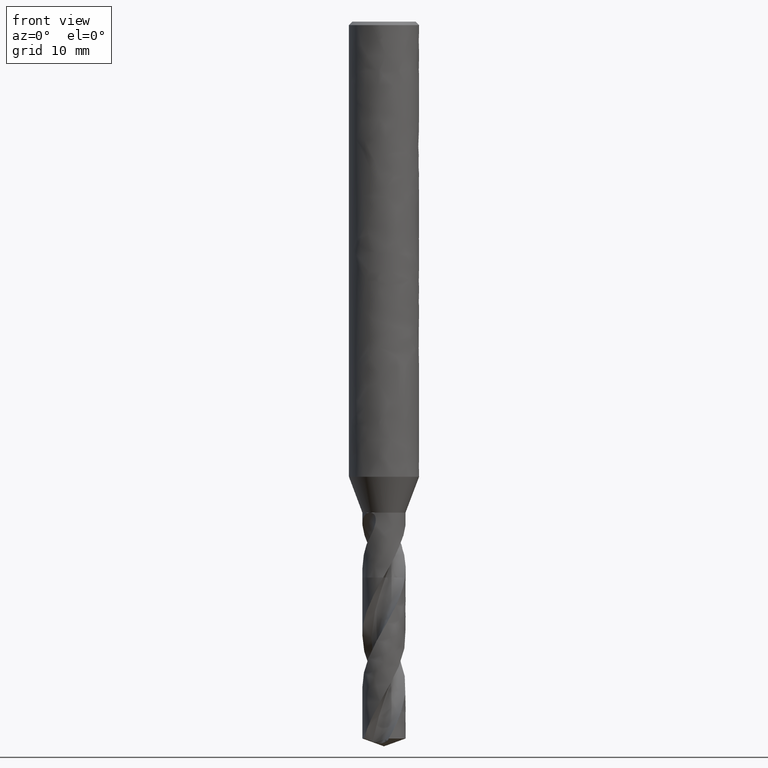
[diagram: clean part render]
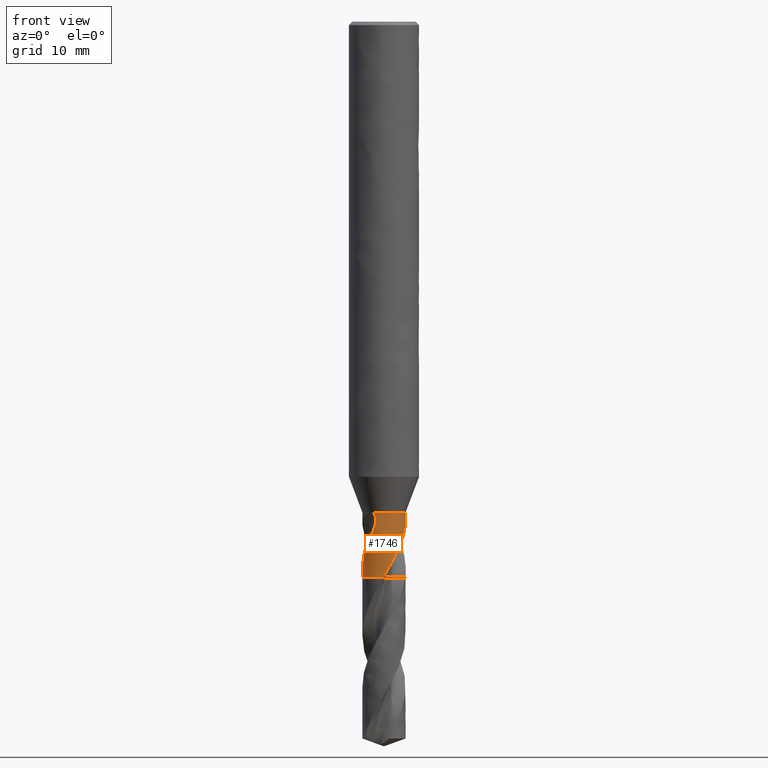
[diagram: same view with one face highlighted and labeled with its STEP entity id]
A machine part, front view. The second image highlights one B-rep face of the part: STEP entity #1746.
In plain terms, the highlighted face is a freeform B-spline surface patch.
Its self-contained STEP definition (entity closure, byte-faithful):
#75 = VERTEX_POINT('', #76);
#76 = CARTESIAN_POINT('', (-1.10024020626456, -1.48726981026272, -42.));
#86 = EDGE_CURVE('', #87, #75, #89, .T.);
#87 = VERTEX_POINT('', #88);
#88 = CARTESIAN_POINT('', (1.29785377991718, 1.31836093917967, -42.));
#89 = CIRCLE('', #90, 1.85);
#90 = AXIS2_PLACEMENT_3D('', #91, #92, #93);
#91 = CARTESIAN_POINT('', (1.57474777179495E-31, 2.57175827820944E-15, -42.));
#92 = DIRECTION('', (3.74939945665464E-33, 6.12323399573677E-17, -1.));
#93 = DIRECTION('', (-1., 6.12323399573677E-17, 0.));
#508 = VERTEX_POINT('', #509);
#509 = CARTESIAN_POINT('', (-0.0624869089179854, -1.84894439781565, -47.55));
#518 = VERTEX_POINT('', #519);
#519 = CARTESIAN_POINT('', (1.84306729502877, -0.16000920597057, -43.0867052285401));
#539 = EDGE_CURVE('', #518, #508, #540, .T.);
#540 = B_SPLINE_CURVE_WITH_KNOTS('', 3, (#541, #542, #543, #544, #545, #546, #547, #548, #549, #550, #551, #552, #553, #554, #555, #556, #557, #558, #559, #560, #561, #562, #563, #564, #565, #566, #567, #568, #569, #570, #571, #572, #573, #574, #575, #576, #577, #578, #579, #580, #581, #582, #583, #584, #585, #586, #587, #588, #589, #590, #591, #592, #593, #594, #595, #596, #597, #598, #599, #600, #601, #602, #603, #604, #605, #606, #607, #608, #609, #610, #611, #612, #613, #614, #615, #616, #617, #618, #619, #620, #621, #622, #623, #624, #625, #626, #627, #628, #629, #630, #631, #632, #633, #634), .UNSPECIFIED., .F., .U., (4, 3, 3, 3, 3, 3, 3, 3, 3, 3, 3, 3, 3, 3, 3, 3, 3, 3, 3, 3, 3, 3, 3, 3, 3, 3, 3, 3, 3, 3, 3, 4), (0., 0.196716425756111, 0.393437133958275, 0.59017746014317, 0.786949945770253, 0.983762286250152, 1.18062367194909, 1.37754068411883, 1.57452691595146, 1.7715672682591, 1.96863333770452, 2.10000741513502, 2.29719094586902, 2.38479003934848, 2.47238311044585, 2.60373979518899, 2.73507246103042, 2.79345636772641, 2.9904871215106, 3.18744214066474, 3.38437231018557, 3.58129833184764, 3.87651929793645, 4.00781151643261, 4.2046934113103, 4.33598364964063, 4.46726265002099, 4.76235120048029, 5.05739169356764, 5.14491864603674, 5.18384170503142, 5.282823434122), .UNSPECIFIED.);
#541 = CARTESIAN_POINT('', (1.84306729502877, -0.16000920597057, -43.0867052285401));
#542 = CARTESIAN_POINT('', (1.8394089816215, -0.202147517669621, -43.1368119668692));
#543 = CARTESIAN_POINT('', (1.83433192427245, -0.243844442050025, -43.1872078451688));
#544 = CARTESIAN_POINT('', (1.82791775511327, -0.284985404086187, -43.2378634023422));
#545 = CARTESIAN_POINT('', (1.82150344631992, -0.326127261746341, -43.2885200622689));
#546 = CARTESIAN_POINT('', (1.81374890392893, -0.366732595037003, -43.3394629215907));
#547 = CARTESIAN_POINT('', (1.80474407914064, -0.406692523667633, -43.3906684900215));
#548 = CARTESIAN_POINT('', (1.79573835634573, -0.446656437304199, -43.4418791649302));
#549 = CARTESIAN_POINT('', (1.78547746268948, -0.485996564263179, -43.493374642911));
#550 = CARTESIAN_POINT('', (1.7740550419084, -0.524622443553114, -43.5451271347679));
#551 = CARTESIAN_POINT('', (1.76263075400283, -0.563254636681987, -43.5968880861577));
#552 = CARTESIAN_POINT('', (1.75003931164126, -0.601189657327781, -43.6489293038802));
#553 = CARTESIAN_POINT('', (1.73638221861051, -0.638339087706113, -43.7012318891068));
#554 = CARTESIAN_POINT('', (1.72272235943371, -0.675496042434586, -43.7535450678461));
#555 = CARTESIAN_POINT('', (1.70799045171578, -0.711884146026338, -43.8061406899594));
#556 = CARTESIAN_POINT('', (1.69228860561475, -0.747435131169756, -43.8589940644174));
#557 = CARTESIAN_POINT('', (1.67658284664688, -0.78299497554349, -43.9118606098245));
#558 = CARTESIAN_POINT('', (1.65990016344424, -0.817731680688119, -43.9650057986794));
#559 = CARTESIAN_POINT('', (1.64234989441402, -0.851579018247069, -44.0184135772988));
#560 = CARTESIAN_POINT('', (1.6247946662623, -0.88543591993627, -44.0718364471776));
#561 = CARTESIAN_POINT('', (1.60636560613688, -0.918414893005733, -44.1255425994533));
#562 = CARTESIAN_POINT('', (1.58716699698794, -0.950474052077632, -44.1795065001637));
#563 = CARTESIAN_POINT('', (1.56796163920292, -0.982544480486593, -44.2334893700987));
#564 = CARTESIAN_POINT('', (1.54797906546389, -1.01370603095089, -44.2877487467111));
#565 = CARTESIAN_POINT('', (1.52732994534929, -1.04391725631884, -44.3422685054474));
#566 = CARTESIAN_POINT('', (1.50667515204536, -1.07413678199211, -44.3968032430744));
#567 = CARTESIAN_POINT('', (1.48534803003034, -1.10341346603316, -44.4516179767842));
#568 = CARTESIAN_POINT('', (1.46346141123672, -1.13171582025809, -44.5066981954612));
#569 = CARTESIAN_POINT('', (1.44157193586482, -1.16002186842457, -44.5617856030492));
#570 = CARTESIAN_POINT('', (1.41911608457152, -1.18736225758671, -44.6171554295696));
#571 = CARTESIAN_POINT('', (1.39620458087777, -1.21371857048326, -44.6727918541367));
#572 = CARTESIAN_POINT('', (1.38093062900578, -1.23128900409975, -44.7098818715589));
#573 = CARTESIAN_POINT('', (1.36545248290692, -1.2484244480044, -44.7470969854065));
#574 = CARTESIAN_POINT('', (1.34979710174421, -1.26512757622424, -44.7844279066911));
#575 = CARTESIAN_POINT('', (1.32629944228941, -1.29019783255721, -44.8404590736338));
#576 = CARTESIAN_POINT('', (1.30239311868944, -1.31430295233905, -44.8967606330958));
#577 = CARTESIAN_POINT('', (1.27819821668728, -1.33742637885509, -44.9533297349508));
#578 = CARTESIAN_POINT('', (1.2674495934411, -1.34769899743233, -44.9784606473703));
#579 = CARTESIAN_POINT('', (1.25664380815718, -1.35777821187862, -45.0036470461029));
#580 = CARTESIAN_POINT('', (1.24579550256817, -1.36765988673388, -45.0288916320781));
#581 = CARTESIAN_POINT('', (1.23494794279327, -1.37754088223026, -45.0541344825041));
#582 = CARTESIAN_POINT('', (1.22405901929778, -1.38722342849867, -45.079438080554));
#583 = CARTESIAN_POINT('', (1.21313597855747, -1.39671081385139, -45.1047991101634));
#584 = CARTESIAN_POINT('', (1.19675552287774, -1.41093832604159, -45.142831122621));
#585 = CARTESIAN_POINT('', (1.18029965092425, -1.42472673700079, -45.1809971554676));
#586 = CARTESIAN_POINT('', (1.16374451597932, -1.43812332625826, -45.2192546293281));
#587 = CARTESIAN_POINT('', (1.14719240818264, -1.45151746591553, -45.2575051077129));
#588 = CARTESIAN_POINT('', (1.13053991931252, -1.46452186999191, -45.2958502385999));
#589 = CARTESIAN_POINT('', (1.11369908485439, -1.47721844978814, -45.3342124270485));
#590 = CARTESIAN_POINT('', (1.10621249573061, -1.48286271144561, -45.3512663291884));
#591 = CARTESIAN_POINT('', (1.09868756825841, -1.48844671096235, -45.368323495497));
#592 = CARTESIAN_POINT('', (1.09111270762558, -1.49397893534614, -45.3853751307361));
#593 = CARTESIAN_POINT('', (1.06554949021243, -1.51264877781002, -45.44292003882));
#594 = CARTESIAN_POINT('', (1.03942606233949, -1.53072069983775, -45.500415970826));
#595 = CARTESIAN_POINT('', (1.01279953459577, -1.54813988473994, -45.5578708014862));
#596 = CARTESIAN_POINT('', (0.986183241549886, -1.56555237406035, -45.6153035476734));
#597 = CARTESIAN_POINT('', (0.959060315084665, -1.58231618639473, -45.6727042137548));
#598 = CARTESIAN_POINT('', (0.931450019125534, -1.59840572504951, -45.7300534986446));
#599 = CARTESIAN_POINT('', (0.903843206732006, -1.61449323370201, -45.7873955478279));
#600 = CARTESIAN_POINT('', (0.875741680918837, -1.62991064719169, -45.8446936133014));
#601 = CARTESIAN_POINT('', (0.847180338500194, -1.64462320124054, -45.9019373474767));
#602 = CARTESIAN_POINT('', (0.818619597657303, -1.65933544540495, -45.9591798759508));
#603 = CARTESIAN_POINT('', (0.789594436399041, -1.67334506704525, -46.0163775908209));
#604 = CARTESIAN_POINT('', (0.760149899400829, -1.68661558466679, -46.0735246442443));
#605 = CARTESIAN_POINT('', (0.716008223327328, -1.70651003538319, -46.1591964522582));
#606 = CARTESIAN_POINT('', (0.670911021226305, -1.72474784854423, -46.244782461559));
#607 = CARTESIAN_POINT('', (0.625025846268933, -1.74121873740661, -46.3302645998306));
#608 = CARTESIAN_POINT('', (0.604619550279691, -1.74854375760418, -46.3682806653024));
#609 = CARTESIAN_POINT('', (0.584055035286924, -1.75552054066731, -46.4062808468294));
#610 = CARTESIAN_POINT('', (0.563346944238397, -1.76214080607006, -46.4442629626469));
#611 = CARTESIAN_POINT('', (0.532293708550612, -1.77206835860909, -46.5012198106556));
#612 = CARTESIAN_POINT('', (0.500909312496765, -1.78119609540537, -46.5581421256214));
#613 = CARTESIAN_POINT('', (0.469273212738797, -1.78949228883664, -46.6150391611139));
#614 = CARTESIAN_POINT('', (0.448176752449008, -1.79502458632647, -46.6529808182416));
#615 = CARTESIAN_POINT('', (0.426967308034693, -1.8001874748472, -46.6909154781211));
#616 = CARTESIAN_POINT('', (0.405680311941993, -1.80497187914456, -46.7288523937935));
#617 = CARTESIAN_POINT('', (0.384395137935993, -1.80975587391493, -46.7667860622089));
#618 = CARTESIAN_POINT('', (0.363034204533173, -1.81416132216792, -46.804726918238));
#619 = CARTESIAN_POINT('', (0.341611422508367, -1.81818635898848, -46.8426712449126));
#620 = CARTESIAN_POINT('', (0.29345735615968, -1.82723382490066, -46.9279623906717));
#621 = CARTESIAN_POINT('', (0.244978150929426, -1.83436186632938, -47.0132957013568));
#622 = CARTESIAN_POINT('', (0.196287717151161, -1.83955731960045, -47.0986039612971));
#623 = CARTESIAN_POINT('', (0.14760521297329, -1.84475192675319, -47.1838983281507));
#624 = CARTESIAN_POINT('', (0.0986926689142373, -1.84801458656961, -47.2692011964943));
#625 = CARTESIAN_POINT('', (0.0497394103237672, -1.84933122805534, -47.3544886170324));
#626 = CARTESIAN_POINT('', (0.0352168968442807, -1.84972182398858, -47.3797900525253));
#627 = CARTESIAN_POINT('', (0.0206897971943664, -1.84994133859987, -47.4050920752432));
#628 = CARTESIAN_POINT('', (0.00616321375096961, -1.84998973370023, -47.4303941429912));
#629 = CARTESIAN_POINT('', (-0.000296728568604671, -1.85001125490362, -47.441645921419));
#630 = CARTESIAN_POINT('', (-0.00675665059765378, -1.84999893921517, -47.4528978270825));
#631 = CARTESIAN_POINT('', (-0.0132161625767267, -1.84995279211301, -47.4641497785203));
#632 = CARTESIAN_POINT('', (-0.0296427662734539, -1.84983543956977, -47.4927636037881));
#633 = CARTESIAN_POINT('', (-0.0460709922501162, -1.84949918999374, -47.5213851793178));
#634 = CARTESIAN_POINT('', (-0.0624869089179854, -1.84894439781565, -47.55));
#881 = EDGE_CURVE('', #518, #87, #882, .T.);
#882 = B_SPLINE_CURVE_WITH_KNOTS('', 3, (#883, #884, #885, #886, #887, #888, #889, #890, #891, #892, #893, #894, #895, #896, #897, #898, #899, #900, #901, #902, #903, #904, #905, #906, #907, #908, #909, #910, #911, #912, #913, #914, #915, #916, #917, #918, #919, #920, #921, #922, #923, #924, #925), .UNSPECIFIED., .F., .U., (4, 3, 3, 3, 3, 3, 3, 3, 3, 3, 3, 3, 3, 3, 4), (0., 0.198822606907566, 0.237813090860458, 0.276851461468435, 0.477158387704633, 0.677648811455937, 0.878275060535816, 1.07899684459672, 1.27976999007786, 1.4127545313711, 1.54570524612523, 1.67859063721191, 1.81136380158849, 1.89946093325806, 1.99367396907799), .UNSPECIFIED.);
#883 = CARTESIAN_POINT('', (1.84306729502877, -0.16000920597057, -43.0867052285401));
#884 = CARTESIAN_POINT('', (1.84676477685177, -0.11741973256749, -43.0360620130592));
#885 = CARTESIAN_POINT('', (1.84908909034062, -0.0734947396122872, -42.9863911045682));
#886 = CARTESIAN_POINT('', (1.8497816446024, -0.0284230063867278, -42.9378078860306));
#887 = CARTESIAN_POINT('', (1.84991745926779, -0.0195841287641381, -42.9282803819292));
#888 = CARTESIAN_POINT('', (1.84999059587092, -0.0107001759196398, -42.9187933938194));
#889 = CARTESIAN_POINT('', (1.84999915061381, -0.00177277414997356, -42.9093478148476));
#890 = CARTESIAN_POINT('', (1.85000771586332, 0.00716559192087611, -42.8998906351687));
#891 = CARTESIAN_POINT('', (1.84995154084945, 0.0161479258675499, -42.8904745302085));
#892 = CARTESIAN_POINT('', (1.8498287332905, 0.0251725543567623, -42.8811004325029));
#893 = CARTESIAN_POINT('', (1.84919860441302, 0.0714781650916627, -42.8330016858494));
#894 = CARTESIAN_POINT('', (1.84681152314698, 0.118935973603663, -42.7859700880014));
#895 = CARTESIAN_POINT('', (1.84241960979114, 0.167302066505653, -42.7401494787513));
#896 = CARTESIAN_POINT('', (1.83802367308372, 0.215712466701604, -42.6942868940783));
#897 = CARTESIAN_POINT('', (1.83161242122115, 0.265103298801918, -42.6495733535844));
#898 = CARTESIAN_POINT('', (1.82295210336695, 0.315191416174411, -42.6061861760742));
#899 = CARTESIAN_POINT('', (1.81428591844689, 0.365313466514237, -42.5627696052518));
#900 = CARTESIAN_POINT('', (1.80335330265948, 0.416213837861926, -42.5206062538252));
#901 = CARTESIAN_POINT('', (1.78993885779428, 0.467566984888932, -42.4799217571133));
#902 = CARTESIAN_POINT('', (1.77651802518698, 0.518944585455537, -42.4392178871008));
#903 = CARTESIAN_POINT('', (1.76058658273116, 0.570874983213705, -42.3999142955713));
#904 = CARTESIAN_POINT('', (1.7419481894896, 0.622989971936866, -42.3623214788425));
#905 = CARTESIAN_POINT('', (1.72330502698818, 0.675118296032913, -42.3247190427271));
#906 = CARTESIAN_POINT('', (1.70190903998081, 0.727553250041842, -42.2887381830671));
#907 = CARTESIAN_POINT('', (1.67758993459279, 0.779866662547497, -42.2548153166187));
#908 = CARTESIAN_POINT('', (1.66148187857295, 0.814517089271035, -42.2323460923449));
#909 = CARTESIAN_POINT('', (1.64406775195739, 0.849166429459568, -42.2107469870411));
#910 = CARTESIAN_POINT('', (1.62530845606401, 0.883669860664505, -42.1901900020238));
#911 = CARTESIAN_POINT('', (1.60655393186853, 0.918164515423296, -42.1696382459726));
#912 = CARTESIAN_POINT('', (1.58642623752813, 0.952565279280328, -42.150096372932));
#913 = CARTESIAN_POINT('', (1.56490081726154, 0.986704328628476, -42.1317887337214));
#914 = CARTESIAN_POINT('', (1.54338597324043, 1.02082660418258, -42.1134900897398));
#915 = CARTESIAN_POINT('', (1.52043432833809, 1.0547502280468, -42.0963896679464));
#916 = CARTESIAN_POINT('', (1.49604763451553, 1.08827454038974, -42.0807861997375));
#917 = CARTESIAN_POINT('', (1.47168153617299, 1.12177054019018, -42.0651959092444));
#918 = CARTESIAN_POINT('', (1.44582423421392, 1.15494607456439, -42.0510621361919));
#919 = CARTESIAN_POINT('', (1.41852830087003, 1.18755103453738, -42.038790440434));
#920 = CARTESIAN_POINT('', (1.40041700974331, 1.20918495028615, -42.0306479727744));
#921 = CARTESIAN_POINT('', (1.3816443322107, 1.23060175934945, -42.0233139004419));
#922 = CARTESIAN_POINT('', (1.36224878133229, 1.25171013328114, -42.0169425495199));
#923 = CARTESIAN_POINT('', (1.34150674700013, 1.27428389875612, -42.0101288848605));
#924 = CARTESIAN_POINT('', (1.32001231931342, 1.29654707678571, -42.0044031172285));
#925 = CARTESIAN_POINT('', (1.29785377991718, 1.31836093917968, -42.));
#1143 = EDGE_CURVE('', #1144, #1146, #1148, .T.);
#1144 = VERTEX_POINT('', #1145);
#1145 = CARTESIAN_POINT('', (-1.49718759874657, -1.08670570724528, -44.7500251806955));
#1146 = VERTEX_POINT('', #1147);
#1147 = CARTESIAN_POINT('', (-1.73069871023089, -0.65359159603313, -45.6142021687221));
#1148 = B_SPLINE_CURVE_WITH_KNOTS('', 3, (#1149, #1150, #1151, #1152, #1153, #1154, #1155, #1156, #1157, #1158, #1159, #1160, #1161, #1162, #1163, #1164, #1165, #1166, #1167, #1168, #1169, #1170, #1171, #1172, #1173), .UNSPECIFIED., .F., .U., (4, 3, 3, 3, 3, 3, 3, 3, 4), (0., 0.197059343819578, 0.328452626677997, 0.416033315045696, 0.54736459219892, 0.678671321736234, 0.737050102141031, 0.934021778654905, 0.99555840081466), .UNSPECIFIED.);
#1149 = CARTESIAN_POINT('', (-1.49718759874657, -1.08670570724528, -44.7500251806955));
#1150 = CARTESIAN_POINT('', (-1.51832803527759, -1.05757988302691, -44.8049749554888));
#1151 = CARTESIAN_POINT('', (-1.53819775188796, -1.02841371260222, -44.8604089169814));
#1152 = CARTESIAN_POINT('', (-1.55681081058634, -0.99941988175216, -44.91633405678));
#1153 = CARTESIAN_POINT('', (-1.56922144201854, -0.980087661598625, -44.9536232691056));
#1154 = CARTESIAN_POINT('', (-1.58107599746843, -0.960828382463214, -44.9911406274283));
#1155 = CARTESIAN_POINT('', (-1.59237270795861, -0.941726690154463, -45.0288997792663));
#1156 = CARTESIAN_POINT('', (-1.59990257295244, -0.928994385085329, -45.0540682843695));
#1157 = CARTESIAN_POINT('', (-1.607182831556, -0.916335883547863, -45.0793501704879));
#1158 = CARTESIAN_POINT('', (-1.61423004891212, -0.903748498858624, -45.1047304498904));
#1159 = CARTESIAN_POINT('', (-1.62479767601125, -0.884873135601415, -45.1427893481539));
#1160 = CARTESIAN_POINT('', (-1.63484261468264, -0.86615777946995, -45.1810755169713));
#1161 = CARTESIAN_POINT('', (-1.6444486249812, -0.847519156006298, -45.219504153418));
#1162 = CARTESIAN_POINT('', (-1.65405283978477, -0.828884016356858, -45.2579256070259));
#1163 = CARTESIAN_POINT('', (-1.66322041811302, -0.810323312682977, -45.296493666637));
#1164 = CARTESIAN_POINT('', (-1.67205308195712, -0.791668169827288, -45.3350901323241));
#1165 = CARTESIAN_POINT('', (-1.67598007141731, -0.783374120527378, -45.3522500646649));
#1166 = CARTESIAN_POINT('', (-1.67984117626185, -0.775059917090704, -45.369415468581));
#1167 = CARTESIAN_POINT('', (-1.68364524945491, -0.766706380557722, -45.3865742340519));
#1168 = CARTESIAN_POINT('', (-1.69648030132172, -0.738521309127451, -45.4444684000189));
#1169 = CARTESIAN_POINT('', (-1.70865598646685, -0.709907120557712, -45.502305359234));
#1170 = CARTESIAN_POINT('', (-1.72013899947602, -0.680897806195348, -45.5600762113432));
#1171 = CARTESIAN_POINT('', (-1.72372644841948, -0.671834903098695, -45.5781246087626));
#1172 = CARTESIAN_POINT('', (-1.7272465665319, -0.662732810032251, -45.5961668821323));
#1173 = CARTESIAN_POINT('', (-1.73069871023089, -0.65359159603313, -45.6142021687221));
#1260 = VERTEX_POINT('', #1261);
#1261 = CARTESIAN_POINT('', (-1.85, 2.97885262663979E-15, -46.7983552435492));
#1277 = EDGE_CURVE('', #1146, #1260, #1278, .T.);
#1278 = B_SPLINE_CURVE_WITH_KNOTS('', 3, (#1279, #1280, #1281, #1282, #1283, #1284, #1285, #1286, #1287, #1288, #1289, #1290, #1291, #1292, #1293, #1294, #1295, #1296, #1297, #1298, #1299, #1300), .UNSPECIFIED., .F., .U., (4, 3, 3, 3, 3, 3, 3, 4), (0., 0.131307389809115, 0.426486088284236, 0.62334934500505, 0.918404643924937, 1.11521526862668, 1.31201969954361, 1.3595742574502), .UNSPECIFIED.);
#1279 = CARTESIAN_POINT('', (-1.73069871023089, -0.653591596033128, -45.6142021687221));
#1280 = CARTESIAN_POINT('', (-1.73806492505469, -0.634085992576458, -45.6526860231074));
#1281 = CARTESIAN_POINT('', (-1.74512635359128, -0.614389979598252, -45.6911334783599));
#1282 = CARTESIAN_POINT('', (-1.75187504928931, -0.594502995516075, -45.7295352974037));
#1283 = CARTESIAN_POINT('', (-1.76704610108957, -0.549797102827887, -45.8158624948366));
#1284 = CARTESIAN_POINT('', (-1.7806365469637, -0.50411535374325, -45.9019830047171));
#1285 = CARTESIAN_POINT('', (-1.79249756168144, -0.457659798721795, -45.9879036681683));
#1286 = CARTESIAN_POINT('', (-1.80040801727127, -0.426677238321802, -46.0452066568799));
#1287 = CARTESIAN_POINT('', (-1.80755135119565, -0.395345544806982, -46.1024331583638));
#1288 = CARTESIAN_POINT('', (-1.81389175255734, -0.363726146990753, -46.1595833102811));
#1289 = CARTESIAN_POINT('', (-1.82339463821618, -0.31633553164822, -46.2452389853834));
#1290 = CARTESIAN_POINT('', (-1.83109595479214, -0.268283496512208, -46.3307509469144));
#1291 = CARTESIAN_POINT('', (-1.83690131476583, -0.219757957333903, -46.4161010481368));
#1292 = CARTESIAN_POINT('', (-1.84077366183847, -0.187389985246528, -46.4730320939489));
#1293 = CARTESIAN_POINT('', (-1.84380336814338, -0.154801288254314, -46.5299016552521));
#1294 = CARTESIAN_POINT('', (-1.84596655088532, -0.122096244875243, -46.5867305690563));
#1295 = CARTESIAN_POINT('', (-1.8481296655502, -0.0893922307495518, -46.64355769441));
#1296 = CARTESIAN_POINT('', (-1.84942584740443, -0.0565670753900655, -46.7003547725027));
#1297 = CARTESIAN_POINT('', (-1.84984728227812, -0.0237704069852769, -46.757168104698));
#1298 = CARTESIAN_POINT('', (-1.84994911509261, -0.0158456308024844, -46.7708961131741));
#1299 = CARTESIAN_POINT('', (-1.85, -0.00792197701582683, -46.7846252419342));
#1300 = CARTESIAN_POINT('', (-1.85, 3.06778685093676E-15, -46.7983552435492));
#1303 = EDGE_CURVE('', #1144, #75, #1304, .T.);
#1304 = B_SPLINE_CURVE_WITH_KNOTS('', 3, (#1305, #1306, #1307, #1308, #1309, #1310, #1311, #1312, #1313, #1314, #1315, #1316, #1317, #1318, #1319, #1320, #1321, #1322, #1323, #1324, #1325, #1326, #1327, #1328, #1329, #1330, #1331, #1332, #1333, #1334, #1335, #1336, #1337, #1338, #1339, #1340, #1341, #1342, #1343, #1344, #1345, #1346, #1347, #1348, #1349, #1350, #1351, #1352, #1353, #1354, #1355, #1356, #1357, #1358, #1359, #1360, #1361, #1362, #1363, #1364, #1365, #1366, #1367, #1368, #1369, #1370, #1371, #1372, #1373, #1374, #1375, #1376, #1377, #1378, #1379, #1380, #1381, #1382, #1383, #1384, #1385, #1386, #1387, #1388, #1389, #1390, #1391, #1392, #1393, #1394, #1395, #1396, #1397, #1398), .UNSPECIFIED., .F., .U., (4, 3, 3, 3, 3, 3, 3, 3, 3, 3, 3, 3, 3, 3, 3, 3, 3, 3, 3, 3, 3, 3, 3, 3, 3, 3, 3, 3, 3, 3, 3, 4), (0., 0.0875844961724776, 0.284661913231413, 0.481547126377977, 0.612735009487164, 0.743855380556728, 0.874908558684904, 1.0058933912258, 1.13680877502435, 1.26766122932118, 1.39845748589745, 1.52920695332873, 1.65992658625603, 1.79063505644454, 1.92135879208781, 2.05213829723771, 2.18302753288296, 2.31410901812366, 2.44550792458881, 2.53327209903489, 2.55924725997595, 2.64733557715993, 2.73573734269401, 2.7946061471892, 2.85357373075538, 2.91262347631889, 2.97172180260201, 3.03082163859827, 3.08987290581467, 3.14883507119858, 3.20768475162252, 3.24392678534289), .UNSPECIFIED.);
#1305 = CARTESIAN_POINT('', (-1.49718759874657, -1.08670570724529, -44.7500251806954));
#1306 = CARTESIAN_POINT('', (-1.48779157394233, -1.09965089720852, -44.7256023431543));
#1307 = CARTESIAN_POINT('', (-1.47816485835865, -1.11256039252553, -44.7012482111164));
#1308 = CARTESIAN_POINT('', (-1.46831867052837, -1.12540671838143, -44.6769508302682));
#1309 = CARTESIAN_POINT('', (-1.4461633650774, -1.15431275573982, -44.6222783109513));
#1310 = CARTESIAN_POINT('', (-1.42288689290747, -1.18290452644296, -44.5678825944904));
#1311 = CARTESIAN_POINT('', (-1.39865822269709, -1.21089024113741, -44.5136122320748));
#1312 = CARTESIAN_POINT('', (-1.37445318200893, -1.23884866217267, -44.4593947979761));
#1313 = CARTESIAN_POINT('', (-1.34929051625967, -1.26621001062962, -44.4052857726782));
#1314 = CARTESIAN_POINT('', (-1.32340143868604, -1.29271366979843, -44.3511156778398));
#1315 = CARTESIAN_POINT('', (-1.30615111689572, -1.31037349749922, -44.3150212451696));
#1316 = CARTESIAN_POINT('', (-1.28857761350958, -1.32765528226835, -44.2788927266559));
#1317 = CARTESIAN_POINT('', (-1.27076380428974, -1.34449222895028, -44.2426789638912));
#1318 = CARTESIAN_POINT('', (-1.25295916243021, -1.36132051098587, -44.2064838374892));
#1319 = CARTESIAN_POINT('', (-1.23491201298027, -1.37770683340821, -44.1701986069677));
#1320 = CARTESIAN_POINT('', (-1.21671093035233, -1.39359768655138, -44.1337776665513));
#1321 = CARTESIAN_POINT('', (-1.19851917491184, -1.40948039638963, -44.097375390131));
#1322 = CARTESIAN_POINT('', (-1.18017086116392, -1.42487064748244, -44.0608321147434));
#1323 = CARTESIAN_POINT('', (-1.16176075757828, -1.43972634279962, -44.0241074286454));
#1324 = CARTESIAN_POINT('', (-1.14336025505199, -1.45457429071811, -43.9874018948509));
#1325 = CARTESIAN_POINT('', (-1.12489481783544, -1.46889076924375, -43.9505088761629));
#1326 = CARTESIAN_POINT('', (-1.10647170437172, -1.4826396620301, -43.9133888936844));
#1327 = CARTESIAN_POINT('', (-1.08805835892492, -1.49638126509217, -43.8762885923861));
#1328 = CARTESIAN_POINT('', (-1.06968356932216, -1.50955872483177, -43.8389543017987));
#1329 = CARTESIAN_POINT('', (-1.05146156194961, -1.52214604547082, -43.8013533296288));
#1330 = CARTESIAN_POINT('', (-1.03324831368397, -1.5347273155313, -43.7637704318087));
#1331 = CARTESIAN_POINT('', (-1.01518328615826, -1.54672209282422, -43.7259123850508));
#1332 = CARTESIAN_POINT('', (-0.997389908957162, -1.55811211711815, -43.6877528770398));
#1333 = CARTESIAN_POINT('', (-0.979604173548071, -1.56949724969335, -43.6496097575435));
#1334 = CARTESIAN_POINT('', (-0.962084902723828, -1.5802813087247, -43.6111545303886));
#1335 = CARTESIAN_POINT('', (-0.944968933364692, -1.59045078986293, -43.5723669493995));
#1336 = CARTESIAN_POINT('', (-0.927859086822776, -1.60061663311932, -43.5335932437139));
#1337 = CARTESIAN_POINT('', (-0.911146116690425, -1.61017204798469, -43.494474067188));
#1338 = CARTESIAN_POINT('', (-0.894978222354074, -1.6191090085328, -43.4549997540301));
#1339 = CARTESIAN_POINT('', (-0.878814017219042, -1.62804392983907, -43.4155344481483));
#1340 = CARTESIAN_POINT('', (-0.863187302587616, -1.63636478013494, -43.3756972129213));
#1341 = CARTESIAN_POINT('', (-0.848263421283126, -1.64406483087287, -43.3354901028513));
#1342 = CARTESIAN_POINT('', (-0.833340814396146, -1.65176422406875, -43.2952864262477));
#1343 = CARTESIAN_POINT('', (-0.81911299646185, -1.65884706397929, -43.2546905364967));
#1344 = CARTESIAN_POINT('', (-0.80577104587552, -1.66530268168542, -43.213719597785));
#1345 = CARTESIAN_POINT('', (-0.792427537081502, -1.67175905334377, -43.1727438740734));
#1346 = CARTESIAN_POINT('', (-0.779959992835707, -1.67759311940267, -43.1313637551797));
#1347 = CARTESIAN_POINT('', (-0.768589279019067, -1.68278653434621, -43.0896207413434));
#1348 = CARTESIAN_POINT('', (-0.757213714215754, -1.68798216491026, -43.0478599190557));
#1349 = CARTESIAN_POINT('', (-0.746924261114724, -1.69254220847085, -43.0056958871334));
#1350 = CARTESIAN_POINT('', (-0.737987530525259, -1.69642989975691, -42.9632060644398));
#1351 = CARTESIAN_POINT('', (-0.729043301575304, -1.70032085300889, -42.9206805906762));
#1352 = CARTESIAN_POINT('', (-0.721441954086719, -1.70354420960874, -42.8777722371873));
#1353 = CARTESIAN_POINT('', (-0.715510741516624, -1.70603176370615, -42.834619167081));
#1354 = CARTESIAN_POINT('', (-0.709570817204791, -1.70852297151326, -42.7914027139148));
#1355 = CARTESIAN_POINT('', (-0.705293854595749, -1.71028250413681, -42.7478580886532));
#1356 = CARTESIAN_POINT('', (-0.703092263163661, -1.71118709365148, -42.7042291377787));
#1357 = CARTESIAN_POINT('', (-0.700885340453501, -1.71209387368077, -42.660494536934));
#1358 = CARTESIAN_POINT('', (-0.700759484239835, -1.71214581456973, -42.616548311638));
#1359 = CARTESIAN_POINT('', (-0.703231865171529, -1.71112972734605, -42.5728303179947));
#1360 = CARTESIAN_POINT('', (-0.704883221923451, -1.71045106069082, -42.5436301235352));
#1361 = CARTESIAN_POINT('', (-0.707699185231695, -1.70929286831245, -42.5144700722903));
#1362 = CARTESIAN_POINT('', (-0.711852348203525, -1.70756148772368, -42.4855634557016));
#1363 = CARTESIAN_POINT('', (-0.713081540835811, -1.7070490589368, -42.4770080967194));
#1364 = CARTESIAN_POINT('', (-0.714428364625016, -1.70648605319392, -42.4684715908734));
#1365 = CARTESIAN_POINT('', (-0.715897336852128, -1.70586957387956, -42.4599610245613));
#1366 = CARTESIAN_POINT('', (-0.720878991894414, -1.70377893715533, -42.4310995493075));
#1367 = CARTESIAN_POINT('', (-0.727279876826644, -1.70107015460611, -42.4024697527541));
#1368 = CARTESIAN_POINT('', (-0.735263250160359, -1.69761242719403, -42.3744254614623));
#1369 = CARTESIAN_POINT('', (-0.743275031065926, -1.69414239600562, -42.3462813789937));
#1370 = CARTESIAN_POINT('', (-0.752918792739971, -1.68990212980673, -42.3186135509811));
#1371 = CARTESIAN_POINT('', (-0.76429005046892, -1.68474351720201, -42.2919226847272));
#1372 = CARTESIAN_POINT('', (-0.771862437106965, -1.68130827634388, -42.2741486122546));
#1373 = CARTESIAN_POINT('', (-0.780221032673679, -1.6774555617643, -42.2567586548856));
#1374 = CARTESIAN_POINT('', (-0.789356020453653, -1.67314586123672, -42.2399349201328));
#1375 = CARTESIAN_POINT('', (-0.798506336311277, -1.66882892923539, -42.2230829559484));
#1376 = CARTESIAN_POINT('', (-0.80846351094185, -1.6640400691018, -42.2067510075066));
#1377 = CARTESIAN_POINT('', (-0.819170559137843, -1.65875242126177, -42.1911384235334));
#1378 = CARTESIAN_POINT('', (-0.829892525911333, -1.65345740592114, -42.1755040858948));
#1379 = CARTESIAN_POINT('', (-0.841403395523846, -1.64764346301541, -42.1605397823732));
#1380 = CARTESIAN_POINT('', (-0.853589145210751, -1.64130605652278, -42.1464410215815));
#1381 = CARTESIAN_POINT('', (-0.865784920215853, -1.63496343619282, -42.1323306616214));
#1382 = CARTESIAN_POINT('', (-0.878701843925283, -1.62807232248379, -42.1190362316951));
#1383 = CARTESIAN_POINT('', (-0.892171592425922, -1.62065722769134, -42.1067215955503));
#1384 = CARTESIAN_POINT('', (-0.905641685021864, -1.61324194347448, -42.0944066448185));
#1385 = CARTESIAN_POINT('', (-0.919715384675117, -1.60527404957326, -42.0830247967134));
#1386 = CARTESIAN_POINT('', (-0.934188424724529, -1.59680680957676, -42.0726843516235));
#1387 = CARTESIAN_POINT('', (-0.9486495706987, -1.58834652803468, -42.0623524044049));
#1388 = CARTESIAN_POINT('', (-0.963561968641241, -1.57935654785094, -42.0530210874437));
#1389 = CARTESIAN_POINT('', (-0.97871305764103, -1.56991106461574, -42.0447338931924));
#1390 = CARTESIAN_POINT('', (-0.993841285322888, -1.56047983357029, -42.0364592034009));
#1391 = CARTESIAN_POINT('', (-1.00925797045691, -1.55056292152771, -42.029195933338));
#1392 = CARTESIAN_POINT('', (-1.02476747411456, -1.54024401443306, -42.0229303658746));
#1393 = CARTESIAN_POINT('', (-1.04024738954581, -1.52994479321399, -42.0166767515357));
#1394 = CARTESIAN_POINT('', (-1.05586517880256, -1.51921510270484, -42.0113969247518));
#1395 = CARTESIAN_POINT('', (-1.07145688445503, -1.5081379727181, -42.0070374135543));
#1396 = CARTESIAN_POINT('', (-1.08105889279125, -1.50131622422919, -42.0043526487316));
#1397 = CARTESIAN_POINT('', (-1.09066390080344, -1.49435409061528, -42.0020124920595));
#1398 = CARTESIAN_POINT('', (-1.10024020626456, -1.48726981026272, -42.));
#1677 = VERTEX_POINT('', #1678);
#1678 = CARTESIAN_POINT('', (-1.85, 3.02487759389396E-15, -47.55));
#1685 = EDGE_CURVE('', #1260, #1677, #1686, .T.);
#1686 = LINE('', #1687, #1688);
#1687 = CARTESIAN_POINT('', (-1.85, 2.97885262663979E-15, -46.7983552435492));
#1688 = VECTOR('', #1689, 0.751644756450823);
#1689 = DIRECTION('', (0., 4.60249672541698E-17, -0.751644756450823));
#1746 = ADVANCED_FACE('', (#1747), #1763, .T.);
#1747 = FACE_OUTER_BOUND('', #1748, .T.);
#1748 = EDGE_LOOP('', (#1749, #1756, #1757, #1758, #1759, #1760, #1761, #1762));
#1749 = ORIENTED_EDGE('', *, *, #1750, .F.);
#1750 = EDGE_CURVE('', #508, #1677, #1751, .T.);
#1751 = CIRCLE('', #1752, 1.85);
#1752 = AXIS2_PLACEMENT_3D('', #1753, #1754, #1755);
#1753 = CARTESIAN_POINT('', (1.78283944163928E-31, 2.91159776497283E-15, -47.55));
#1754 = DIRECTION('', (3.74939945665464E-33, 6.12323399573677E-17, -1.));
#1755 = DIRECTION('', (-1., 6.12323399573677E-17, 0.));
#1756 = ORIENTED_EDGE('', *, *, #539, .F.);
#1757 = ORIENTED_EDGE('', *, *, #881, .T.);
#1758 = ORIENTED_EDGE('', *, *, #86, .T.);
#1759 = ORIENTED_EDGE('', *, *, #1303, .F.);
#1760 = ORIENTED_EDGE('', *, *, #1143, .T.);
#1761 = ORIENTED_EDGE('', *, *, #1277, .T.);
#1762 = ORIENTED_EDGE('', *, *, #1685, .T.);
#1763 = (
   BOUNDED_SURFACE ()
   B_SPLINE_SURFACE (2, 1, ((#1764, #1765), (#1766, #1767), (#1768, #1769), (#1770, #1771), (#1772, #1773), (#1774, #1775), (#1776, #1777), (#1778, #1779), (#1780, #1781)), .UNSPECIFIED., .T., .F., .U.)
   B_SPLINE_SURFACE_WITH_KNOTS ((3, 2, 2, 2, 3), (2, 2), (0., 2.90597320457056, 5.81194640914112, 8.71791961371168, 11.6238928182822), (0., 0.287168161322921), .UNSPECIFIED.)
   GEOMETRIC_REPRESENTATION_ITEM ()
   RATIONAL_B_SPLINE_SURFACE (((1., 1.), (0.707106781186548, 0.707106781186548), (1., 1.), (0.707106781186548, 0.707106781186548), (1., 1.), (0.707106781186548, 0.707106781186548), (1., 1.), (0.707106781186548, 0.707106781186548), (1., 1.)))
   REPRESENTATION_ITEM ('')
   SURFACE ()
);
#1764 = CARTESIAN_POINT('', (-1.85, 2.68503810713057E-15, -42.));
#1765 = CARTESIAN_POINT('', (-1.85, 3.02487759389396E-15, -47.55));
#1766 = CARTESIAN_POINT('', (-1.85, 1.85, -42.));
#1767 = CARTESIAN_POINT('', (-1.85, 1.85, -47.55));
#1768 = CARTESIAN_POINT('', (1.4791141972894E-31, 1.85, -42.));
#1769 = CARTESIAN_POINT('', (1.72563323017096E-31, 1.85, -47.55));
#1770 = CARTESIAN_POINT('', (1.85, 1.85, -42.));
#1771 = CARTESIAN_POINT('', (1.85, 1.85, -47.55));
#1772 = CARTESIAN_POINT('', (1.85, 2.68503810713057E-15, -42.));
#1773 = CARTESIAN_POINT('', (1.85, 3.02487759389396E-15, -47.55));
#1774 = CARTESIAN_POINT('', (1.85, -1.85, -42.));
#1775 = CARTESIAN_POINT('', (1.85, -1.85, -47.55));
#1776 = CARTESIAN_POINT('', (2.2655965784226E-16, -1.85, -42.));
#1777 = CARTESIAN_POINT('', (2.2655965784226E-16, -1.85, -47.55));
#1778 = CARTESIAN_POINT('', (-1.85, -1.85, -42.));
#1779 = CARTESIAN_POINT('', (-1.85, -1.85, -47.55));
#1780 = CARTESIAN_POINT('', (-1.85, 2.68503810713057E-15, -42.));
#1781 = CARTESIAN_POINT('', (-1.85, 3.02487759389396E-15, -47.55));